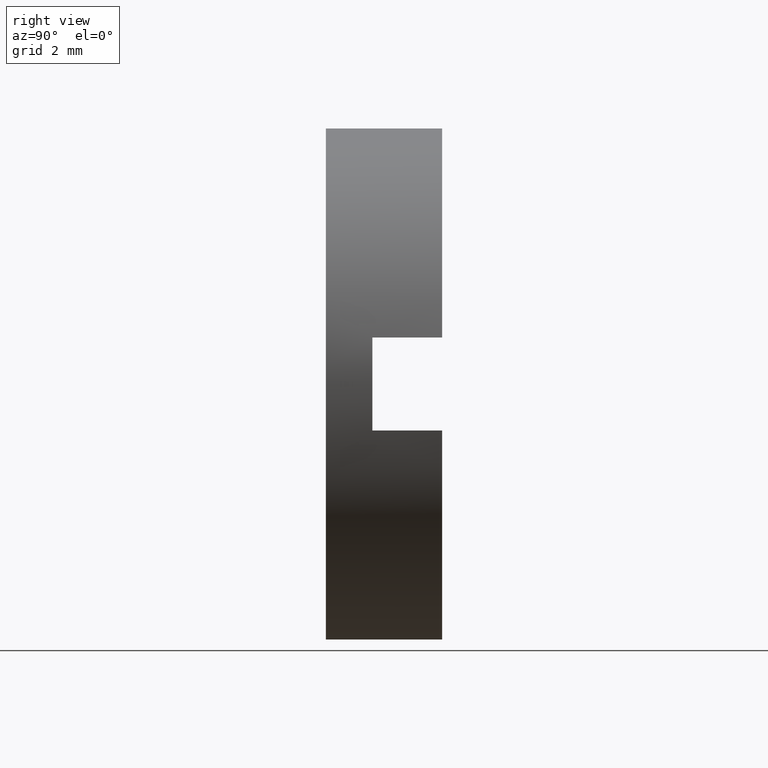
[diagram: clean part render]
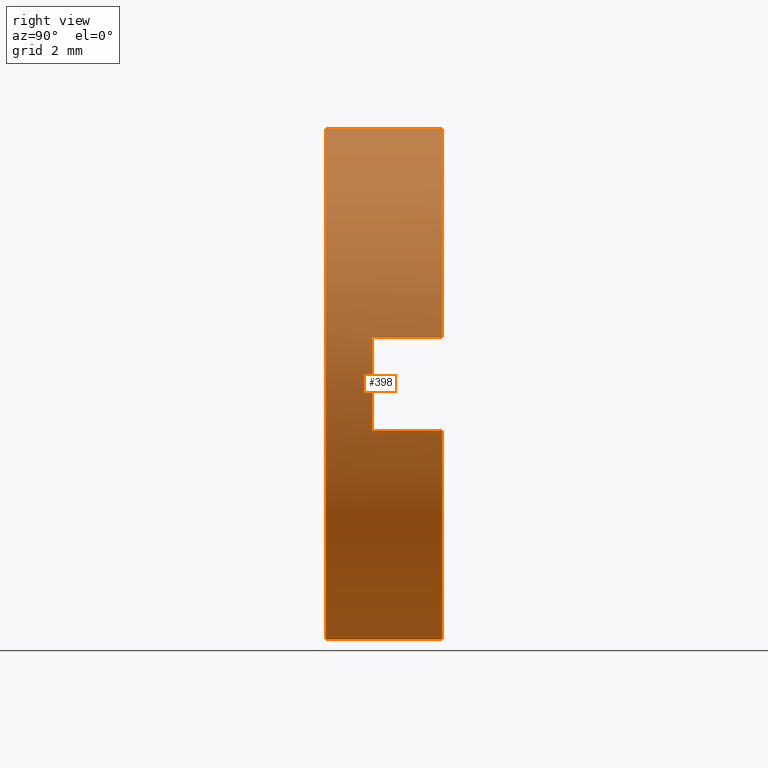
[diagram: same view with one face highlighted and labeled with its STEP entity id]
A machine part, right view. The second image highlights one B-rep face of the part: STEP entity #398.
In plain terms, the highlighted cylindrical surface (partial cylindrical patch) has radius 5.5 mm, axis along (-0, 1, -0).
Its self-contained STEP definition (entity closure, byte-faithful):
#10 = CARTESIAN_POINT ( 'NONE',  ( 5.408326913195989700, -3.464249787179428400, 0.9999999999999995600 ) ) ;
#20 = CARTESIAN_POINT ( 'NONE',  ( 6.735557395310450900E-016, -1.964249787179434000, -5.500000000000006200 ) ) ;
#26 = CARTESIAN_POINT ( 'NONE',  ( 5.408326913195990600, 56.26084262701361600, 1.000000000000000000 ) ) ;
#33 = CARTESIAN_POINT ( 'NONE',  ( 0.0000000000000000000, 56.26084262701361600, 5.500000000000006200 ) ) ;
#35 = ORIENTED_EDGE ( 'NONE', *, *, #168, .T. ) ;
#58 = CIRCLE ( 'NONE', #311, 5.500000000000006200 ) ;
#60 = ORIENTED_EDGE ( 'NONE', *, *, #510, .T. ) ;
#113 = VERTEX_POINT ( 'NONE', #10 ) ;
#116 = CARTESIAN_POINT ( 'NONE',  ( 0.0000000000000000000, -4.464249787179428900, 5.500000000000006200 ) ) ;
#118 = VECTOR ( 'NONE', #297, 1000.000000000000000 ) ;
#129 = CARTESIAN_POINT ( 'NONE',  ( 0.0000000000000000000, -1.964249787179434000, 0.0000000000000000000 ) ) ;
#131 = CARTESIAN_POINT ( 'NONE',  ( 5.408326913195990600, 56.26084262701361600, -1.000000000000000000 ) ) ;
#143 = VERTEX_POINT ( 'NONE', #505 ) ;
#168 = EDGE_CURVE ( 'NONE', #542, #272, #384, .T. ) ;
#169 = DIRECTION ( 'NONE',  ( 0.0000000000000000000, 0.0000000000000000000, 1.000000000000000000 ) ) ;
#190 = CIRCLE ( 'NONE', #380, 5.500000000000006200 ) ;
#198 = DIRECTION ( 'NONE',  ( -0.0000000000000000000, 1.000000000000000000, -0.0000000000000000000 ) ) ;
#212 = DIRECTION ( 'NONE',  ( -0.0000000000000000000, 1.000000000000000000, -0.0000000000000000000 ) ) ;
#227 = CARTESIAN_POINT ( 'NONE',  ( 5.408326913195975500, -1.964249787179430900, -1.000000000000000000 ) ) ;
#238 = CYLINDRICAL_SURFACE ( 'NONE', #475, 5.500000000000006200 ) ;
#240 = CIRCLE ( 'NONE', #449, 5.500000000000006200 ) ;
#244 = ORIENTED_EDGE ( 'NONE', *, *, #548, .F. ) ;
#255 = VERTEX_POINT ( 'NONE', #518 ) ;
#256 = EDGE_CURVE ( 'NONE', #255, #143, #240, .T. ) ;
#272 = VERTEX_POINT ( 'NONE', #20 ) ;
#276 = ORIENTED_EDGE ( 'NONE', *, *, #391, .F. ) ;
#297 = DIRECTION ( 'NONE',  ( 0.0000000000000000000, -1.000000000000000000, 0.0000000000000000000 ) ) ;
#299 = DIRECTION ( 'NONE',  ( 0.0000000000000000000, 0.0000000000000000000, 1.000000000000000000 ) ) ;
#301 = LINE ( 'NONE', #33, #581 ) ;
#308 = VERTEX_POINT ( 'NONE', #116 ) ;
#311 = AXIS2_PLACEMENT_3D ( 'NONE', #394, #388, #299 ) ;
#322 = VERTEX_POINT ( 'NONE', #378 ) ;
#324 = EDGE_CURVE ( 'NONE', #113, #143, #351, .T. ) ;
#330 = FACE_OUTER_BOUND ( 'NONE', #480, .T. ) ;
#337 = CARTESIAN_POINT ( 'NONE',  ( 0.0000000000000000000, -3.464249787179428400, 0.0000000000000000000 ) ) ;
#338 = ORIENTED_EDGE ( 'NONE', *, *, #324, .T. ) ;
#339 = VECTOR ( 'NONE', #566, 1000.000000000000000 ) ;
#351 = LINE ( 'NONE', #26, #339 ) ;
#372 = CARTESIAN_POINT ( 'NONE',  ( 0.0000000000000000000, -1.964249787179434000, 0.0000000000000000000 ) ) ;
#376 = ORIENTED_EDGE ( 'NONE', *, *, #427, .F. ) ;
#378 = CARTESIAN_POINT ( 'NONE',  ( 5.408326913195989700, -3.464249787179428400, -0.9999999999999995600 ) ) ;
#380 = AXIS2_PLACEMENT_3D ( 'NONE', #129, #212, #169 ) ;
#383 = CARTESIAN_POINT ( 'NONE',  ( 0.0000000000000000000, 56.26084262701361600, 0.0000000000000000000 ) ) ;
#384 = LINE ( 'NONE', #560, #457 ) ;
#386 = DIRECTION ( 'NONE',  ( -0.0000000000000000000, 1.000000000000000000, -0.0000000000000000000 ) ) ;
#388 = DIRECTION ( 'NONE',  ( -0.0000000000000000000, 1.000000000000000000, -0.0000000000000000000 ) ) ;
#391 = EDGE_CURVE ( 'NONE', #113, #322, #555, .T. ) ;
#393 = ORIENTED_EDGE ( 'NONE', *, *, #256, .F. ) ;
#394 = CARTESIAN_POINT ( 'NONE',  ( 0.0000000000000000000, -4.464249787179428900, 0.0000000000000000000 ) ) ;
#398 = ADVANCED_FACE ( 'NONE', ( #330 ), #238, .T. ) ;
#427 = EDGE_CURVE ( 'NONE', #556, #272, #190, .T. ) ;
#444 = ORIENTED_EDGE ( 'NONE', *, *, #496, .T. ) ;
#449 = AXIS2_PLACEMENT_3D ( 'NONE', #372, #198, #565 ) ;
#452 = AXIS2_PLACEMENT_3D ( 'NONE', #337, #468, #520 ) ;
#457 = VECTOR ( 'NONE', #459, 1000.000000000000000 ) ;
#459 = DIRECTION ( 'NONE',  ( -0.0000000000000000000, 1.000000000000000000, -0.0000000000000000000 ) ) ;
#468 = DIRECTION ( 'NONE',  ( 0.0000000000000000000, 1.000000000000000000, 0.0000000000000000000 ) ) ;
#475 = AXIS2_PLACEMENT_3D ( 'NONE', #383, #386, #532 ) ;
#480 = EDGE_LOOP ( 'NONE', ( #444, #35, #376, #60, #276, #338, #393, #244 ) ) ;
#486 = DIRECTION ( 'NONE',  ( -0.0000000000000000000, 1.000000000000000000, -0.0000000000000000000 ) ) ;
#496 = EDGE_CURVE ( 'NONE', #308, #542, #58, .T. ) ;
#505 = CARTESIAN_POINT ( 'NONE',  ( 5.408326913195975500, -1.964249787179430900, 1.000000000000000000 ) ) ;
#510 = EDGE_CURVE ( 'NONE', #556, #322, #553, .T. ) ;
#518 = CARTESIAN_POINT ( 'NONE',  ( 0.0000000000000000000, -1.964249787179434000, 5.500000000000006200 ) ) ;
#520 = DIRECTION ( 'NONE',  ( 0.0000000000000000000, 0.0000000000000000000, 1.000000000000000000 ) ) ;
#527 = CARTESIAN_POINT ( 'NONE',  ( 6.735557395310450900E-016, -4.464249787179428900, -5.500000000000006200 ) ) ;
#532 = DIRECTION ( 'NONE',  ( 0.0000000000000000000, 0.0000000000000000000, 1.000000000000000000 ) ) ;
#542 = VERTEX_POINT ( 'NONE', #527 ) ;
#548 = EDGE_CURVE ( 'NONE', #308, #255, #301, .T. ) ;
#553 = LINE ( 'NONE', #131, #118 ) ;
#555 = CIRCLE ( 'NONE', #452, 5.500000000000006200 ) ;
#556 = VERTEX_POINT ( 'NONE', #227 ) ;
#560 = CARTESIAN_POINT ( 'NONE',  ( 6.735557395310450900E-016, 56.26084262701361600, -5.500000000000006200 ) ) ;
#565 = DIRECTION ( 'NONE',  ( 0.0000000000000000000, 0.0000000000000000000, 1.000000000000000000 ) ) ;
#566 = DIRECTION ( 'NONE',  ( -0.0000000000000000000, 1.000000000000000000, -0.0000000000000000000 ) ) ;
#581 = VECTOR ( 'NONE', #486, 1000.000000000000000 ) ;